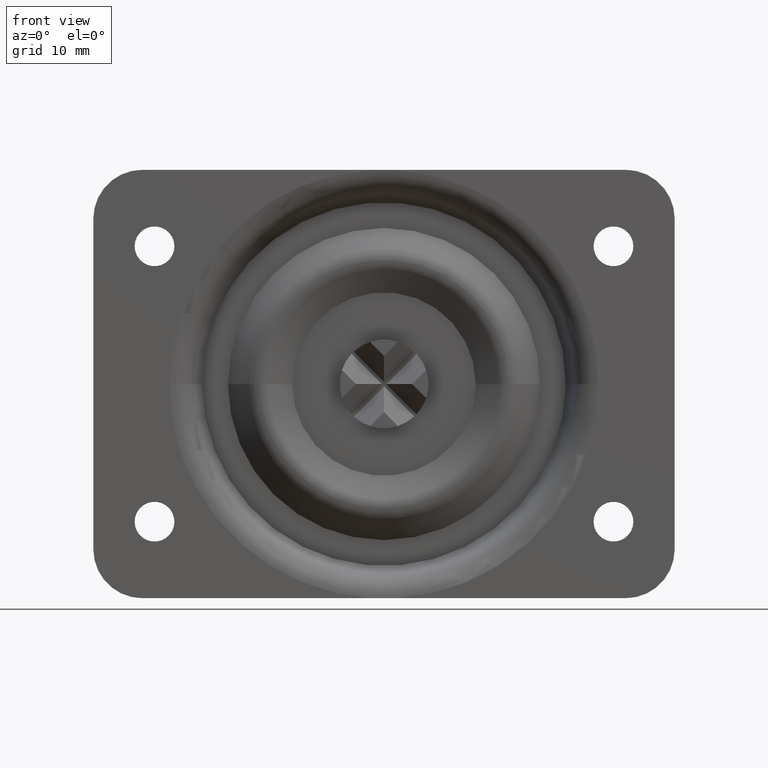
[diagram: clean part render]
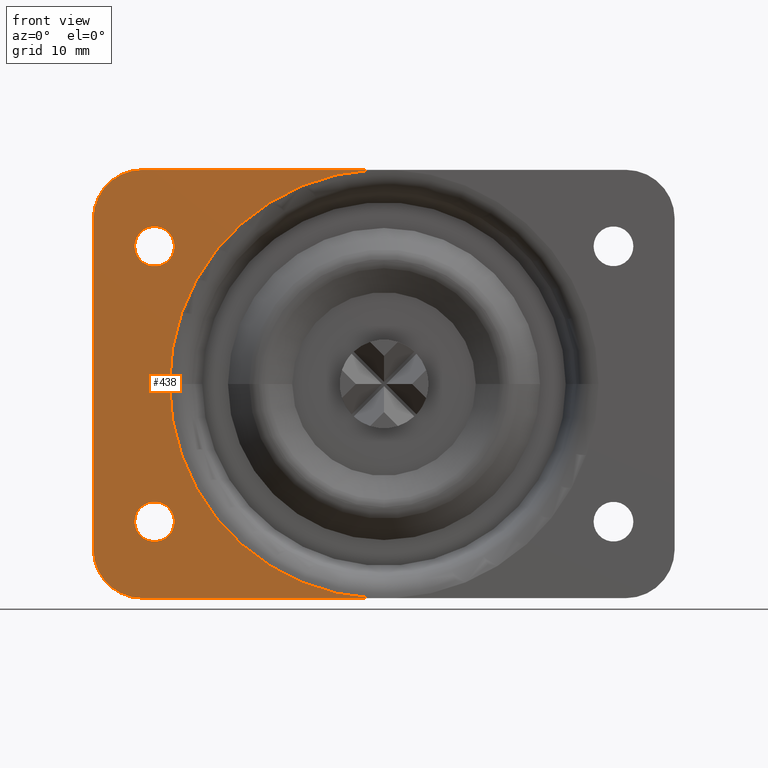
[diagram: same view with one face highlighted and labeled with its STEP entity id]
A machine part, front view. The second image highlights one B-rep face of the part: STEP entity #438.
In plain terms, the highlighted planar face has unit normal (0, -1, 0).
Its self-contained STEP definition (entity closure, byte-faithful):
#10 = VERTEX_POINT ( 'NONE', #2320 ) ;
#52 = ORIENTED_EDGE ( 'NONE', *, *, #1125, .T. ) ;
#68 = DIRECTION ( 'NONE',  ( 0.0000000000000000000, -1.000000000000000000, 0.0000000000000000000 ) ) ;
#113 = EDGE_CURVE ( 'NONE', #146, #10, #4127, .T. ) ;
#146 = VERTEX_POINT ( 'NONE', #4745 ) ;
#156 = VERTEX_POINT ( 'NONE', #1995 ) ;
#171 = DIRECTION ( 'NONE',  ( 1.000000000000000000, 0.0000000000000000000, 0.0000000000000000000 ) ) ;
#261 = DIRECTION ( 'NONE',  ( 0.0000000000000000000, -1.000000000000000000, 0.0000000000000000000 ) ) ;
#382 = DIRECTION ( 'NONE',  ( 1.000000000000000000, 0.0000000000000000000, 3.513364001978343470E-16 ) ) ;
#394 = AXIS2_PLACEMENT_3D ( 'NONE', #618, #261, #3248 ) ;
#438 = ADVANCED_FACE ( 'NONE', ( #3734, #3489, #2717 ), #3290, .T. ) ;
#475 = DIRECTION ( 'NONE',  ( 1.000000000000000000, 0.0000000000000000000, 0.0000000000000000000 ) ) ;
#551 = CIRCLE ( 'NONE', #889, 3.250000000000002665 ) ;
#618 = CARTESIAN_POINT ( 'NONE',  ( -39.50000000000000000, -19.00000000000000355, -27.00000000000000711 ) ) ;
#684 = CARTESIAN_POINT ( 'NONE',  ( -47.50000000000000000, -19.00000000000000355, 27.00000000000000000 ) ) ;
#718 = VERTEX_POINT ( 'NONE', #1198 ) ;
#793 = ORIENTED_EDGE ( 'NONE', *, *, #1905, .F. ) ;
#873 = DIRECTION ( 'NONE',  ( -0.0000000000000000000, 1.000000000000000000, -0.0000000000000000000 ) ) ;
#881 = DIRECTION ( 'NONE',  ( 0.0000000000000000000, -1.000000000000000000, 0.0000000000000000000 ) ) ;
#889 = AXIS2_PLACEMENT_3D ( 'NONE', #1368, #2132, #3237 ) ;
#975 = VERTEX_POINT ( 'NONE', #684 ) ;
#1108 = DIRECTION ( 'NONE',  ( 0.0000000000000000000, 0.0000000000000000000, -1.000000000000000000 ) ) ;
#1125 = EDGE_CURVE ( 'NONE', #3708, #1864, #1200, .T. ) ;
#1183 = DIRECTION ( 'NONE',  ( 0.0000000000000000000, -1.000000000000000000, 0.0000000000000000000 ) ) ;
#1198 = CARTESIAN_POINT ( 'NONE',  ( -39.50000000000000000, -19.00000000000000355, 35.00000000000000000 ) ) ;
#1200 = CIRCLE ( 'NONE', #394, 8.000000000000000000 ) ;
#1223 = AXIS2_PLACEMENT_3D ( 'NONE', #4164, #2259, #4151 ) ;
#1266 = DIRECTION ( 'NONE',  ( 0.0000000000000000000, -1.000000000000000000, 0.0000000000000000000 ) ) ;
#1309 = AXIS2_PLACEMENT_3D ( 'NONE', #3422, #1183, #4540 ) ;
#1321 = CARTESIAN_POINT ( 'NONE',  ( -35.04828104322997717, -19.00000000000000355, -1.985451312893575829E-15 ) ) ;
#1368 = CARTESIAN_POINT ( 'NONE',  ( -37.50000000000000000, -19.00000000000000355, -22.50000000000000355 ) ) ;
#1402 = CARTESIAN_POINT ( 'NONE',  ( -47.50000000000000000, -19.00000000000000355, -27.00000000000000711 ) ) ;
#1442 = VECTOR ( 'NONE', #1108, 1000.000000000000000 ) ;
#1531 = EDGE_CURVE ( 'NONE', #2164, #4743, #551, .T. ) ;
#1590 = ORIENTED_EDGE ( 'NONE', *, *, #4417, .T. ) ;
#1620 = CIRCLE ( 'NONE', #3266, 35.04828104322997717 ) ;
#1639 = CARTESIAN_POINT ( 'NONE',  ( -47.50000000000000000, -19.00000000000000355, -27.00000000000000711 ) ) ;
#1648 = VERTEX_POINT ( 'NONE', #2984 ) ;
#1679 = CARTESIAN_POINT ( 'NONE',  ( -37.50000000000000000, -19.00000000000000355, 22.49999999999999645 ) ) ;
#1692 = CIRCLE ( 'NONE', #1821, 3.250000000000002665 ) ;
#1731 = EDGE_CURVE ( 'NONE', #4743, #2164, #4024, .T. ) ;
#1785 = EDGE_CURVE ( 'NONE', #718, #975, #2961, .T. ) ;
#1818 = ORIENTED_EDGE ( 'NONE', *, *, #3382, .T. ) ;
#1821 = AXIS2_PLACEMENT_3D ( 'NONE', #2702, #881, #475 ) ;
#1864 = VERTEX_POINT ( 'NONE', #2293 ) ;
#1884 = CARTESIAN_POINT ( 'NONE',  ( -34.24999999999999289, -19.00000000000000355, -22.50000000000000355 ) ) ;
#1905 = EDGE_CURVE ( 'NONE', #10, #146, #1692, .T. ) ;
#1927 = ORIENTED_EDGE ( 'NONE', *, *, #113, .F. ) ;
#1983 = VERTEX_POINT ( 'NONE', #1321 ) ;
#1995 = CARTESIAN_POINT ( 'NONE',  ( -1.839022589647664851, -19.00000000000000355, -34.99999999999999289 ) ) ;
#2132 = DIRECTION ( 'NONE',  ( 0.0000000000000000000, -1.000000000000000000, 0.0000000000000000000 ) ) ;
#2164 = VERTEX_POINT ( 'NONE', #3350 ) ;
#2213 = ORIENTED_EDGE ( 'NONE', *, *, #4352, .T. ) ;
#2259 = DIRECTION ( 'NONE',  ( 0.0000000000000000000, -1.000000000000000000, 0.0000000000000000000 ) ) ;
#2293 = CARTESIAN_POINT ( 'NONE',  ( -39.50000000000000000, -19.00000000000000355, -35.00000000000000000 ) ) ;
#2320 = CARTESIAN_POINT ( 'NONE',  ( -34.24999999999999289, -19.00000000000000355, 22.49999999999999645 ) ) ;
#2381 = ORIENTED_EDGE ( 'NONE', *, *, #1731, .F. ) ;
#2415 = LINE ( 'NONE', #1402, #1442 ) ;
#2648 = DIRECTION ( 'NONE',  ( 1.000000000000000000, 0.0000000000000000000, 0.0000000000000000000 ) ) ;
#2652 = CIRCLE ( 'NONE', #4781, 35.04828104322997717 ) ;
#2673 = ORIENTED_EDGE ( 'NONE', *, *, #1531, .F. ) ;
#2702 = CARTESIAN_POINT ( 'NONE',  ( -37.50000000000000000, -19.00000000000000355, 22.49999999999999645 ) ) ;
#2717 = FACE_OUTER_BOUND ( 'NONE', #3517, .T. ) ;
#2767 = DIRECTION ( 'NONE',  ( -1.000000000000000000, 0.0000000000000000000, 0.0000000000000000000 ) ) ;
#2819 = ORIENTED_EDGE ( 'NONE', *, *, #3226, .T. ) ;
#2871 = AXIS2_PLACEMENT_3D ( 'NONE', #3053, #68, #2648 ) ;
#2961 = CIRCLE ( 'NONE', #2871, 8.000000000000000000 ) ;
#2984 = CARTESIAN_POINT ( 'NONE',  ( -1.839022589647664851, -19.00000000000000355, 34.99999999999999289 ) ) ;
#3005 = LINE ( 'NONE', #3766, #3837 ) ;
#3046 = VECTOR ( 'NONE', #4651, 1000.000000000000000 ) ;
#3053 = CARTESIAN_POINT ( 'NONE',  ( -39.50000000000000000, -19.00000000000000355, 27.00000000000000000 ) ) ;
#3226 = EDGE_CURVE ( 'NONE', #156, #1983, #1620, .T. ) ;
#3237 = DIRECTION ( 'NONE',  ( -1.000000000000000000, 0.0000000000000000000, 0.0000000000000000000 ) ) ;
#3248 = DIRECTION ( 'NONE',  ( -1.000000000000000000, 0.0000000000000000000, 0.0000000000000000000 ) ) ;
#3266 = AXIS2_PLACEMENT_3D ( 'NONE', #3269, #3321, #3647 ) ;
#3269 = CARTESIAN_POINT ( 'NONE',  ( 1.773019755452688432E-15, -19.00000000000000355, -1.985451312893575829E-15 ) ) ;
#3290 = PLANE ( 'NONE',  #1309 ) ;
#3321 = DIRECTION ( 'NONE',  ( -0.0000000000000000000, 1.000000000000000000, -0.0000000000000000000 ) ) ;
#3350 = CARTESIAN_POINT ( 'NONE',  ( -40.75000000000000000, -19.00000000000000355, -22.50000000000000355 ) ) ;
#3382 = EDGE_CURVE ( 'NONE', #1864, #156, #3005, .T. ) ;
#3422 = CARTESIAN_POINT ( 'NONE',  ( -39.50000000000000000, -19.00000000000000355, -27.00000000000000711 ) ) ;
#3437 = AXIS2_PLACEMENT_3D ( 'NONE', #1679, #1266, #171 ) ;
#3489 = FACE_BOUND ( 'NONE', #3563, .T. ) ;
#3517 = EDGE_LOOP ( 'NONE', ( #1818, #2819, #1590, #4307, #4526, #2213, #52 ) ) ;
#3563 = EDGE_LOOP ( 'NONE', ( #1927, #793 ) ) ;
#3647 = DIRECTION ( 'NONE',  ( -1.000000000000000000, 0.0000000000000000000, 0.0000000000000000000 ) ) ;
#3696 = LINE ( 'NONE', #4260, #3046 ) ;
#3708 = VERTEX_POINT ( 'NONE', #1639 ) ;
#3734 = FACE_BOUND ( 'NONE', #3891, .T. ) ;
#3766 = CARTESIAN_POINT ( 'NONE',  ( 39.50000000000000000, -19.00000000000000355, -34.99999999999997868 ) ) ;
#3837 = VECTOR ( 'NONE', #382, 1000.000000000000000 ) ;
#3891 = EDGE_LOOP ( 'NONE', ( #2673, #2381 ) ) ;
#4024 = CIRCLE ( 'NONE', #1223, 3.250000000000002665 ) ;
#4127 = CIRCLE ( 'NONE', #3437, 3.250000000000002665 ) ;
#4151 = DIRECTION ( 'NONE',  ( -1.000000000000000000, 0.0000000000000000000, 0.0000000000000000000 ) ) ;
#4164 = CARTESIAN_POINT ( 'NONE',  ( -37.50000000000000000, -19.00000000000000355, -22.50000000000000355 ) ) ;
#4260 = CARTESIAN_POINT ( 'NONE',  ( 39.50000000000000000, -19.00000000000000355, 34.99999999999997868 ) ) ;
#4277 = CARTESIAN_POINT ( 'NONE',  ( 1.773019755452688432E-15, -19.00000000000000355, -1.985451312893575829E-15 ) ) ;
#4307 = ORIENTED_EDGE ( 'NONE', *, *, #4523, .T. ) ;
#4352 = EDGE_CURVE ( 'NONE', #975, #3708, #2415, .T. ) ;
#4417 = EDGE_CURVE ( 'NONE', #1983, #1648, #2652, .T. ) ;
#4523 = EDGE_CURVE ( 'NONE', #1648, #718, #3696, .T. ) ;
#4526 = ORIENTED_EDGE ( 'NONE', *, *, #1785, .T. ) ;
#4540 = DIRECTION ( 'NONE',  ( -1.000000000000000000, 0.0000000000000000000, 0.0000000000000000000 ) ) ;
#4651 = DIRECTION ( 'NONE',  ( -1.000000000000000000, 0.0000000000000000000, 3.513364001978343470E-16 ) ) ;
#4743 = VERTEX_POINT ( 'NONE', #1884 ) ;
#4745 = CARTESIAN_POINT ( 'NONE',  ( -40.75000000000000000, -19.00000000000000355, 22.49999999999999645 ) ) ;
#4781 = AXIS2_PLACEMENT_3D ( 'NONE', #4277, #873, #2767 ) ;